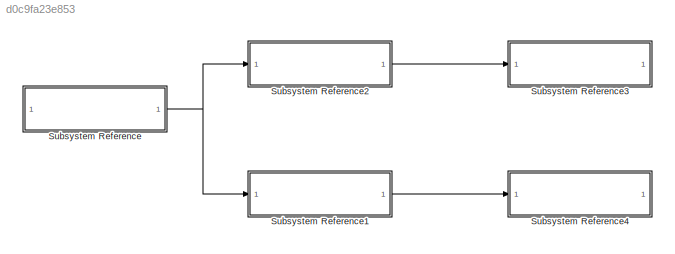
MODEL slx_d0c9fa23e853
KIND model
CONFIG AbsTol = auto
CONFIG EnableMultiTasking = off
CONFIG FixedStep = auto
CONFIG MaxStep = auto
CONFIG MinStep = auto
CONFIG RelTol = 1e-3
CONFIG SampleTimeConstraint = Unconstrained
CONFIG SolverName = VariableStepAuto
CONFIG StartTime = 0.0
CONFIG StopTime = 10.0
BLOCK [SubSystem] Subsystem Reference
  ReferencedSubsystem = SensoresAj
BLOCK [SubSystem] Subsystem Reference1
  ReferencedSubsystem = ControladorAJ
BLOCK [SubSystem] Subsystem Reference2
  ReferencedSubsystem = SenalizadorAj
BLOCK [SubSystem] Subsystem Reference3
  ReferencedSubsystem = LED
BLOCK [SubSystem] Subsystem Reference4
  ReferencedSubsystem = MotoresAJ
LINE Subsystem Reference1:1 -> Subsystem Reference4:1
LINE Subsystem Reference2:1 -> Subsystem Reference3:1
NET Subsystem Reference:1 -> Subsystem Reference1:1, Subsystem Reference2:1
note: NET lines group one-source signal fan-out (src -> all destinations, sorted); 1:1 wires keep LINE
